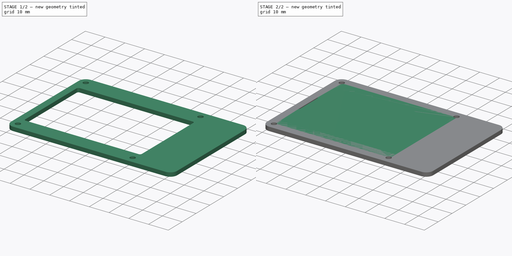
[diagram: build sequence overview — one tinted view per stage of 2, left to right]
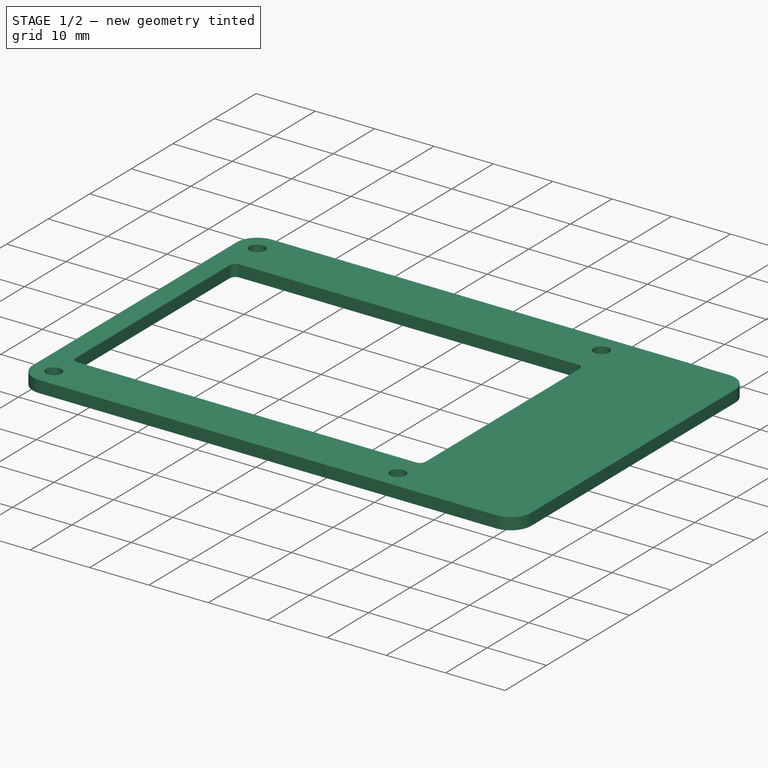
[diagram: stage 1 of 2 — iso view after this stage's code; geometry added in this stage tinted green]
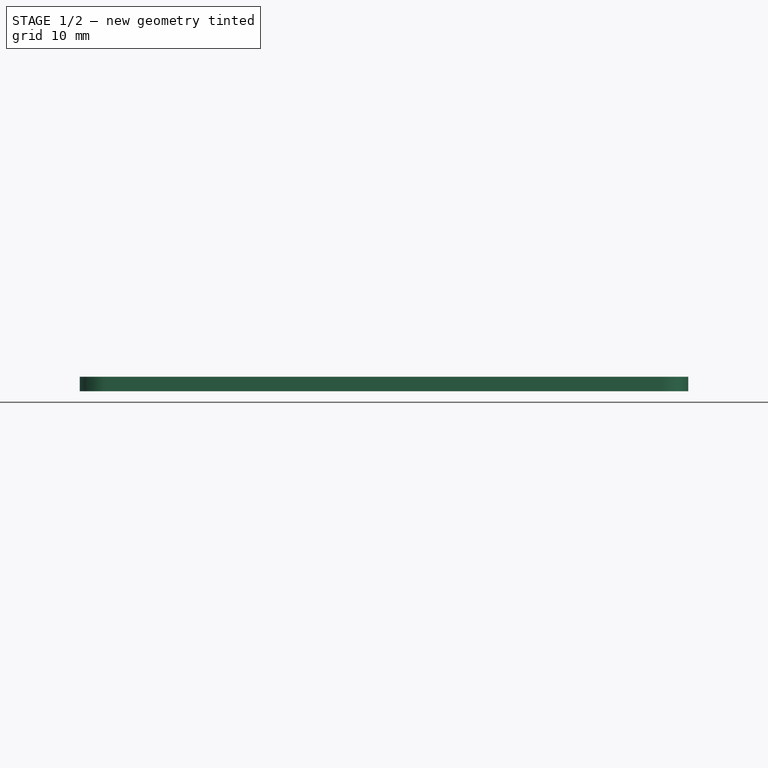
[diagram: stage 1 of 2 — front view after this stage's code; geometry added in this stage tinted green]
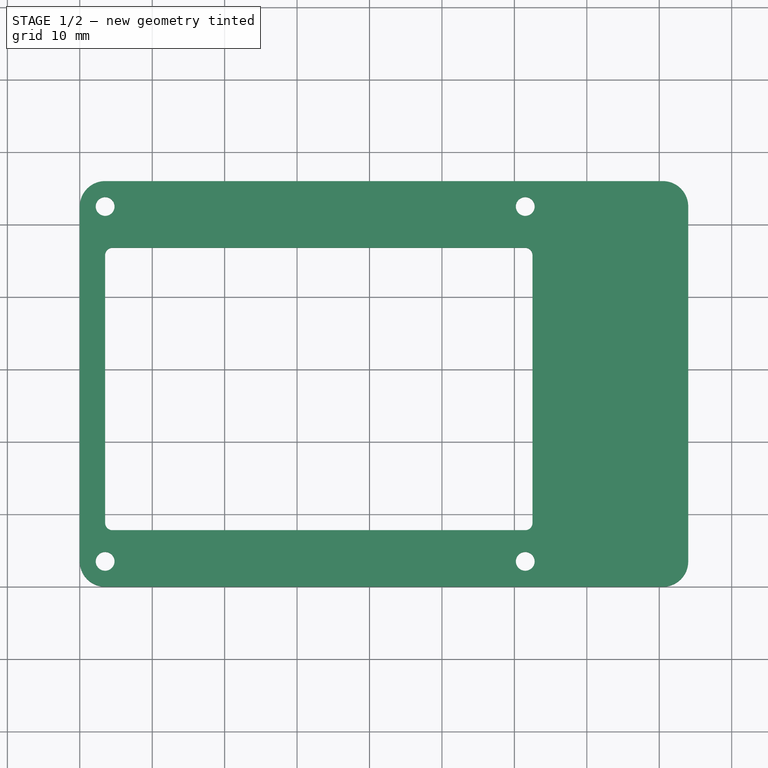
[diagram: stage 1 of 2 — top view after this stage's code; geometry added in this stage tinted green]
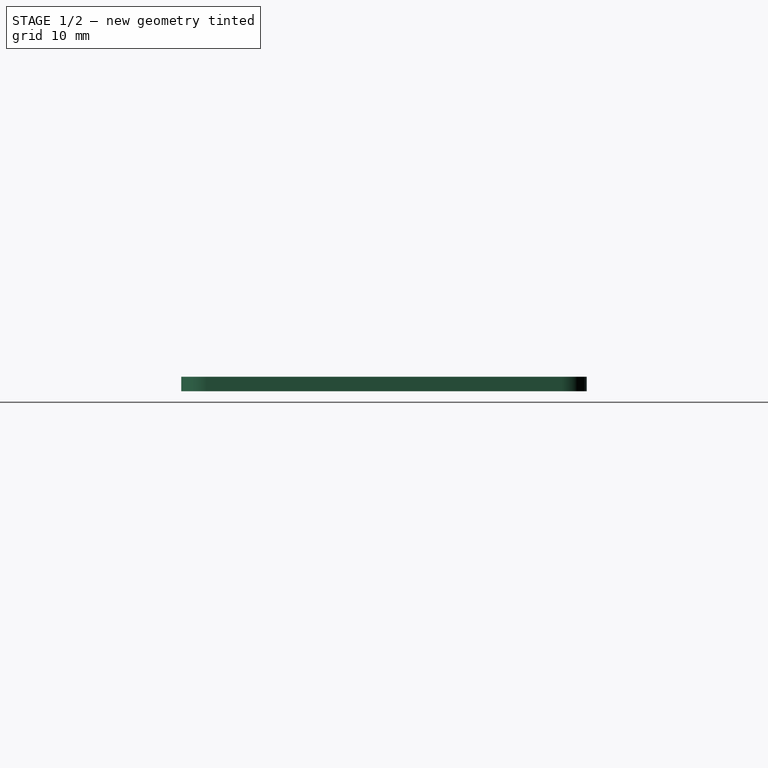
[diagram: stage 1 of 2 — right view after this stage's code; geometry added in this stage tinted green]
FCSTD DOCUMENT  (FreeCAD 0.17R13522 (Git))
Label: cover
License: All rights reserved
LicenseURL: http://en.wikipedia.org/wiki/All_rights_reserved
objects: Sketcher::SketchObject×2, PartDesign::Pad×2, PartDesign::Body×2, TechDraw::DrawViewDraft×2, TechDraw::DrawSVGTemplate×1, TechDraw::DrawPage×1
note: 8 computed .brp shape members not serialized (recipe doc carries the construction recipe); baked Part::Feature solids carry a one-line shape summary decoded from their .brp

FEATURE [PartDesign::Body] Body
  Group = -> [Sketch,Pad]
  Origin = -> Origin
  Placement = pos=(0,57,0) rot=(0,0,1;0rad)
  Tip = -> Pad
FEATURE [Sketcher::SketchObject] Sketch001
  MapMode = 5
  Support = -> [XY_Plane001]
  sketch-geometry (25):
    g0: LineSegment StartX=3.5 StartY=56 StartZ=0 EndX=80.5 EndY=56 EndZ=0
    g1: LineSegment StartX=84 StartY=52.5 StartZ=0 EndX=84 EndY=3.5 EndZ=0
    g2: LineSegment StartX=80.5 StartY=0 StartZ=0 EndX=3.5 EndY=0 EndZ=0
    g3: LineSegment StartX=0 StartY=3.5 StartZ=0 EndX=0 EndY=52.5 EndZ=0
    g4: ArcOfCircle CenterX=3.5 CenterY=52.5 CenterZ=0 NormalX=0 NormalY=0 NormalZ=1 AngleXU=0 Radius=3.5 StartAngle=1.5708 EndAngle=3.14159
    g5: ArcOfCircle CenterX=3.5 CenterY=3.5 CenterZ=0 NormalX=0 NormalY=0 NormalZ=1 AngleXU=0 Radius=3.5 StartAngle=3.14159 EndAngle=4.71239
    g6: ArcOfCircle CenterX=80.5 CenterY=3.5 CenterZ=0 NormalX=0 NormalY=0 NormalZ=1 AngleXU=0 Radius=3.5 StartAngle=4.71239 EndAngle=6.28319
    g7: ArcOfCircle CenterX=80.5 CenterY=52.5 CenterZ=0 NormalX=0 NormalY=0 NormalZ=1 AngleXU=0 Radius=3.5 StartAngle=0 EndAngle=1.5708
    g8: Circle CenterX=3.5 CenterY=52.5 CenterZ=0 NormalX=0 NormalY=0 NormalZ=1 AngleXU=0 Radius=1.3
    g9: Circle CenterX=3.5 CenterY=3.5 CenterZ=0 NormalX=0 NormalY=0 NormalZ=1 AngleXU=0 Radius=1.3
    g10: Circle CenterX=61.5 CenterY=3.5 CenterZ=0 NormalX=0 NormalY=0 NormalZ=1 AngleXU=0 Radius=1.3
    g11: Circle CenterX=61.5 CenterY=52.5 CenterZ=0 NormalX=0 NormalY=0 NormalZ=1 AngleXU=0 Radius=1.3
    g12: LineSegment [constr] StartX=3.5 StartY=56 StartZ=0 EndX=3.5 EndY=0 EndZ=0
    g13: LineSegment [constr] StartX=3.5 StartY=52.5 StartZ=0 EndX=61.5 EndY=52.5 EndZ=0
    g14: LineSegment [constr] StartX=3.5 StartY=3.5 StartZ=0 EndX=61.5 EndY=3.5 EndZ=0
    g15: LineSegment StartX=4.5 StartY=46.8 StartZ=0 EndX=61.5 EndY=46.8 EndZ=0
    g16: LineSegment StartX=62.5 StartY=45.8 StartZ=0 EndX=62.5 EndY=8.8 EndZ=0
    g17: LineSegment StartX=61.5 StartY=7.8 StartZ=0 EndX=4.5 EndY=7.8 EndZ=0
    g18: LineSegment StartX=3.5 StartY=8.8 StartZ=0 EndX=3.5 EndY=45.8 EndZ=0
    g19: ArcOfCircle CenterX=4.5 CenterY=45.8 CenterZ=0 NormalX=0 NormalY=0 NormalZ=1 AngleXU=0 Radius=1 StartAngle=1.5708 EndAngle=3.14159
    g20: ArcOfCircle CenterX=4.5 CenterY=8.8 CenterZ=0 NormalX=0 NormalY=0 NormalZ=1 AngleXU=0 Radius=1 StartAngle=3.14159 EndAngle=4.71239
    g21: ArcOfCircle CenterX=61.5 CenterY=8.8 CenterZ=0 NormalX=0 NormalY=0 NormalZ=1 AngleXU=0 Radius=1 StartAngle=4.71239 EndAngle=6.28319
    g22: ArcOfCircle CenterX=61.5 CenterY=45.8 CenterZ=0 NormalX=0 NormalY=0 NormalZ=1 AngleXU=0 Radius=1 StartAngle=0 EndAngle=1.5708
    g23: LineSegment [constr] StartX=3.5 StartY=8.8 StartZ=0 EndX=3.5 EndY=7.8 EndZ=0
    g24: LineSegment [constr] StartX=3.5 StartY=7.8 StartZ=0 EndX=4.5 EndY=7.8 EndZ=0
  constraints (65):
    c: Horizontal(g0)
    c: Horizontal(g2)
    c: Vertical(g1)
    c: Vertical(g3)
    c: Tangent(g0,g4) = 1.5708
    c: Tangent(g2,g5) = 1.5708
    c: Tangent(g3,g5) = 1.5708
    c: Tangent(g1,g6) = 1.5708
    c: Tangent(g2,g6) = 1.5708
    c: Tangent(g0,g7) = 1.5708
    c: Tangent(g1,g7) = 1.5708
    c: Equal(g5,g4)
    c: Equal(g4,g7)
    c: Equal(g4,g6)
    c: Radius(g4) = 3.5
    c: DistanceY(g2,g0) = 56
    c: DistanceX(g4,g1) = 84
    c: PointOnObject(g2,g-1)
    c: PointOnObject(g3,g-2)
    c: PointOnObject(g12,g0)
    c: PointOnObject(g12,g2)
    c: Vertical(g12)
    c: PointOnObject(g13,g12)
    c: Horizontal(g13)
    c: PointOnObject(g14,g12)
    c: Horizontal(g14)
    c: Coincident(g11,g13)
    c: Coincident(g10,g14)
    c: Coincident(g9,g14)
    c: Coincident(g13,g8)
    c: DistanceX(g9) = 3.5
    c: DistanceY(g9) = 3.5
    c: Radius(g9) = 1.3
    c: Equal(g9,g8)
    c: Equal(g9,g11)
    c: Equal(g9,g10)
    c: DistanceY(g5,g8) = 49
    c: DistanceX(g13,g13) = 58
    c: Equal(g13,g14)
    c: Coincident(g4,g3)
    c: Horizontal(g15)
    c: Horizontal(g17)
    c: Vertical(g16)
    c: Vertical(g18)
    c: Tangent(g15,g19) = 1.5708
    c: Tangent(g18,g19) = 1.5708
    c: Tangent(g17,g20) = 1.5708
    c: Tangent(g18,g20) = 1.5708
    c: Tangent(g16,g21) = 1.5708
    c: Tangent(g17,g21) = 1.5708
    c: Tangent(g15,g22) = 1.5708
    c: Tangent(g16,g22) = 1.5708
    c: Radius(g22) = 1
    c: Equal(g22,g21)
    c: Equal(g22,g20)
    c: Equal(g22,g19)
    c: DistanceY(g17,g15) = 39
    c: DistanceX(g18,g16) = 59
    c: Vertical(g23)
    c: Coincident(g23,g24)
    c: Horizontal(g24)
    c: Coincident(g17,g24)
    c: Coincident(g23,g18)
    c: DistanceX(g23) = 3.5
    c: DistanceY(g23) = 7.8
FEATURE [PartDesign::Pad] Pad001
  Length = 2
  Length2 = 100
  Profile = -> Sketch001
  Type = 0
FEATURE [PartDesign::Body] Body001
  Group = -> [Sketch001,Pad001]
  Origin = -> Origin001
  Tip = -> Pad001
FEATURE [TechDraw::DrawSVGTemplate] Template
  EditableTexts = Designed_by_Name=Designed by Name; Drawing_number=Drawing number; FC-Date=Date; FC-SC=Scale; FC-SH=Sheet; FC-Title=Title; Subtitle=Subtitle; Weight=Weight
  Height = 210
  Orientation = 1
  Width = 297
FEATURE [TechDraw::DrawViewDraft] DraftView
  Direction = (0,0,1)
  FontSize = 12
  LineSpacing = 1
  LineStyle = Solid
  LineWidth = 0.35
  LockPosition = false
  Rotation = 0
  ScaleType = 2
  Source = -> Pad
  Symbol = <blob: 5097 chars omitted>
  X = 80.677
  Y = 76.3636
FEATURE [TechDraw::DrawViewDraft] DraftView001
  Direction = (0,0,1)
  FontSize = 12
  LineSpacing = 1
  LineStyle = Solid
  LineWidth = 0.35
  LockPosition = false
  Rotation = 0
  ScaleType = 2
  Source = -> Pad001
  Symbol = <blob: 5087 chars omitted>
  X = 80.1047
  Y = 146.639
FEATURE [TechDraw::DrawPage] Page001
  KeepUpdated = true
  ProjectionType = 0
  Template = -> Template
  Views = -> [DraftView,DraftView001]
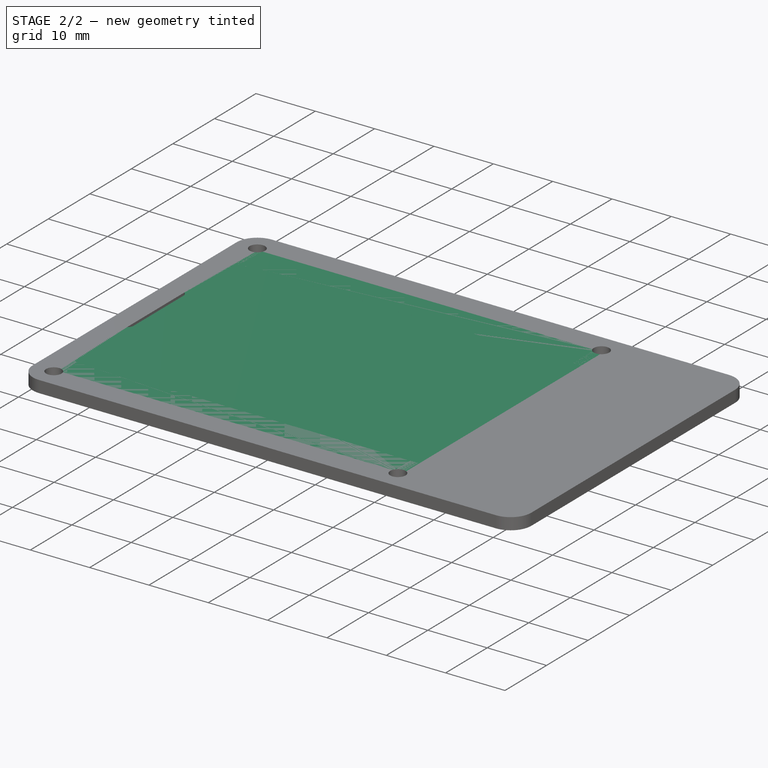
[diagram: stage 2 of 2 — iso view after this stage's code; geometry added in this stage tinted green]
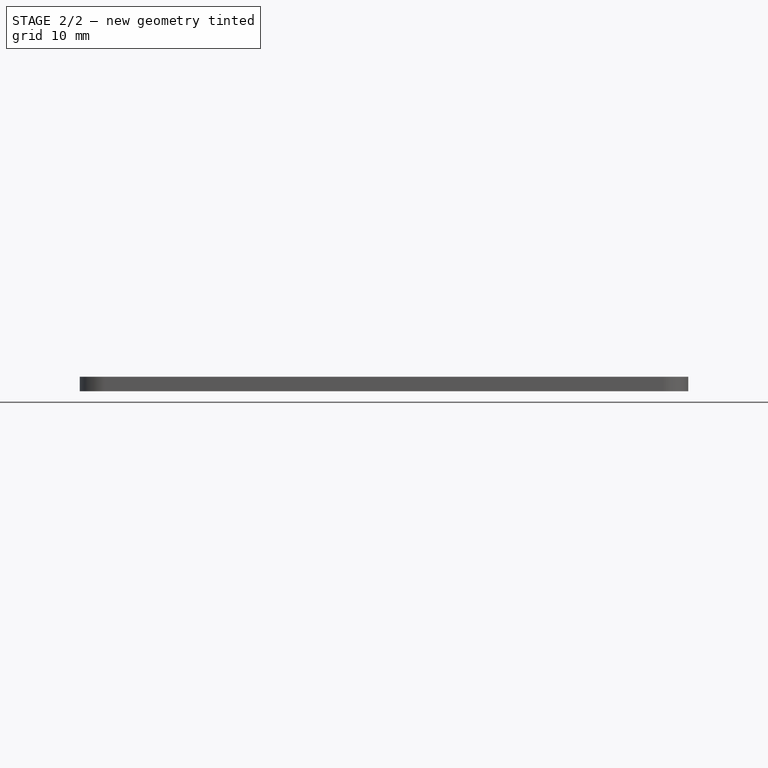
[diagram: stage 2 of 2 — front view after this stage's code; geometry added in this stage tinted green]
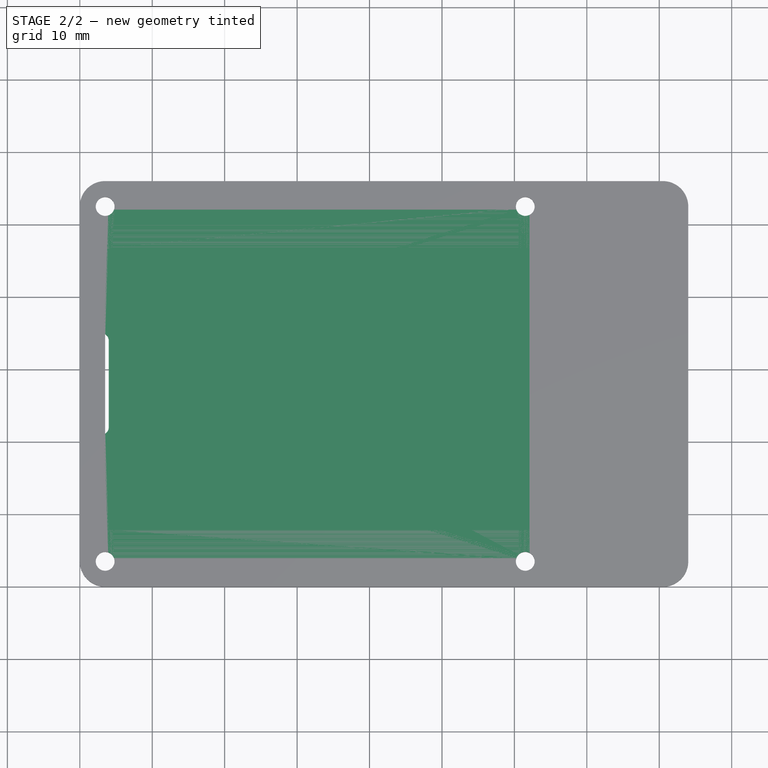
[diagram: stage 2 of 2 — top view after this stage's code; geometry added in this stage tinted green]
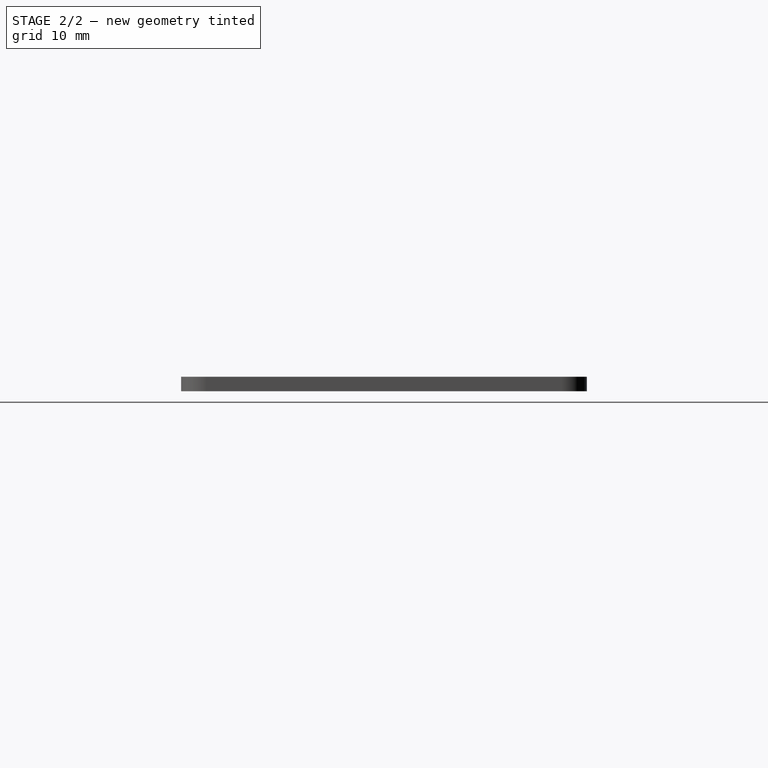
[diagram: stage 2 of 2 — right view after this stage's code; geometry added in this stage tinted green]
FEATURE [Sketcher::SketchObject] Sketch
  MapMode = 5
  Support = -> [XY_Plane]
  sketch-geometry (23):
    g0: LineSegment StartX=3.4953 StartY=56 StartZ=0 EndX=80.5 EndY=56 EndZ=0
    g1: LineSegment StartX=84 StartY=52.5 StartZ=0 EndX=84 EndY=3.5 EndZ=0
    g2: LineSegment StartX=80.5 StartY=0 StartZ=0 EndX=3.5 EndY=0 EndZ=0
    g3: LineSegment StartX=0 StartY=3.5 StartZ=0 EndX=0 EndY=20 EndZ=0
    g4: ArcOfCircle CenterX=3.4953 CenterY=52.5 CenterZ=0 NormalX=0 NormalY=0 NormalZ=1 AngleXU=0 Radius=3.5 StartAngle=1.5708 EndAngle=3.19342
    g5: ArcOfCircle CenterX=3.5 CenterY=3.5 CenterZ=0 NormalX=0 NormalY=0 NormalZ=1 AngleXU=0 Radius=3.5 StartAngle=3.14159 EndAngle=4.71239
    g6: ArcOfCircle CenterX=80.5 CenterY=3.5 CenterZ=0 NormalX=0 NormalY=0 NormalZ=1 AngleXU=0 Radius=3.5 StartAngle=4.71239 EndAngle=6.28319
    g7: ArcOfCircle CenterX=80.5 CenterY=52.5 CenterZ=0 NormalX=0 NormalY=0 NormalZ=1 AngleXU=0 Radius=3.5 StartAngle=0 EndAngle=1.5708
    g8: Circle CenterX=3.5 CenterY=52.5 CenterZ=0 NormalX=0 NormalY=0 NormalZ=1 AngleXU=0 Radius=1.3
    g9: Circle CenterX=3.5 CenterY=3.5 CenterZ=0 NormalX=0 NormalY=0 NormalZ=1 AngleXU=0 Radius=1.3
    g10: Circle CenterX=61.5 CenterY=3.5 CenterZ=0 NormalX=0 NormalY=0 NormalZ=1 AngleXU=0 Radius=1.3
    g11: Circle CenterX=61.5 CenterY=52.5 CenterZ=0 NormalX=0 NormalY=0 NormalZ=1 AngleXU=0 Radius=1.3
    g12: LineSegment [constr] StartX=3.5 StartY=56 StartZ=0 EndX=3.5 EndY=0 EndZ=0
    g13: LineSegment [constr] StartX=3.5 StartY=52.5 StartZ=0 EndX=61.5 EndY=52.5 EndZ=0
    g14: LineSegment [constr] StartX=3.5 StartY=3.5 StartZ=0 EndX=61.5 EndY=3.5 EndZ=0
    g15: LineSegment StartX=1 StartY=35 StartZ=0 EndX=3 EndY=35 EndZ=0
    g16: LineSegment StartX=4 StartY=34 StartZ=0 EndX=4 EndY=22 EndZ=0
    g17: LineSegment StartX=3 StartY=21 StartZ=0 EndX=1 EndY=21 EndZ=0
    g18: LineSegment StartX=0 StartY=36 StartZ=0 EndX=0 EndY=52.3187 EndZ=0
    g19: ArcOfCircle CenterX=1 CenterY=36 CenterZ=0 NormalX=0 NormalY=0 NormalZ=1 AngleXU=0 Radius=1 StartAngle=3.14159 EndAngle=4.71239
    g20: ArcOfCircle CenterX=3 CenterY=34 CenterZ=0 NormalX=0 NormalY=0 NormalZ=1 AngleXU=0 Radius=1 StartAngle=0 EndAngle=1.5708
    g21: ArcOfCircle CenterX=1 CenterY=20 CenterZ=0 NormalX=0 NormalY=0 NormalZ=1 AngleXU=0 Radius=1 StartAngle=1.5708 EndAngle=3.14159
    g22: ArcOfCircle CenterX=3 CenterY=22 CenterZ=0 NormalX=0 NormalY=0 NormalZ=1 AngleXU=0 Radius=1 StartAngle=4.71239 EndAngle=6.28319
  constraints (59):
    c: Horizontal(g0)
    c: Horizontal(g2)
    c: Vertical(g1)
    c: Vertical(g3)
    c: Tangent(g0,g4) = 1.5708
    c: Coincident(g18,g4) = 1.5708
    c: Tangent(g2,g5) = 1.5708
    c: Tangent(g3,g5) = 1.5708
    c: Tangent(g1,g6) = 1.5708
    c: Tangent(g2,g6) = 1.5708
    c: Tangent(g0,g7) = 1.5708
    c: Tangent(g1,g7) = 1.5708
    c: Equal(g5,g4)
    c: Equal(g4,g7)
    c: Equal(g4,g6)
    c: Radius(g4) = 3.5
    c: DistanceY(g2,g0) = 56
    c: DistanceX(g18,g1) = 84
    c: PointOnObject(g2,g-1)
    c: PointOnObject(g3,g-2)
    c: PointOnObject(g12,g0)
    c: PointOnObject(g12,g2)
    c: Vertical(g12)
    c: PointOnObject(g13,g12)
    c: Horizontal(g13)
    c: PointOnObject(g14,g12)
    c: Horizontal(g14)
    c: Coincident(g11,g13)
    c: Coincident(g10,g14)
    c: Coincident(g9,g14)
    c: Coincident(g13,g8)
    c: DistanceX(g9) = 3.5
    c: DistanceY(g9) = 3.5
    c: Radius(g9) = 1.3
    c: Equal(g9,g8)
    c: Equal(g9,g11)
    c: Equal(g9,g10)
    c: DistanceY(g5,g8) = 49
    c: DistanceX(g13,g13) = 58
    c: Equal(g13,g14)
    c: Horizontal(g15)
    c: Vertical(g16)
    c: Horizontal(g17)
    c: Tangent(g3,g18)
    c: Tangent(g15,g19) = -1.5708
    c: Tangent(g18,g19) = 1.5708
    c: Tangent(g15,g20) = 1.5708
    c: Tangent(g16,g20) = 1.5708
    c: Tangent(g3,g21) = 1.5708
    c: Tangent(g17,g21) = -1.5708
    c: Tangent(g16,g22) = 1.5708
    c: Tangent(g17,g22) = 1.5708
    c: Radius(g19) = 1
    c: Equal(g19,g20)
    c: Equal(g19,g22)
    c: Equal(g19,g21)
    c: DistanceY(g15,g0) = 21
    c: DistanceY(g2,g17) = 21
    c: DistanceX(g18,g16) = 4
FEATURE [PartDesign::Pad] Pad
  Length = 2
  Length2 = 100
  Profile = -> Sketch
  Type = 0
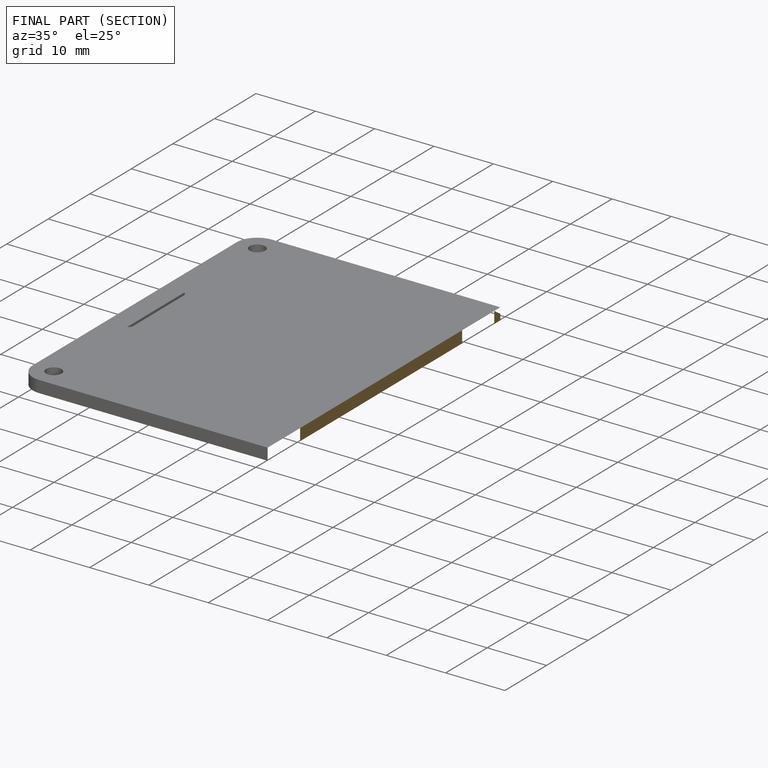
[diagram: finished part — half-section view (interior)]
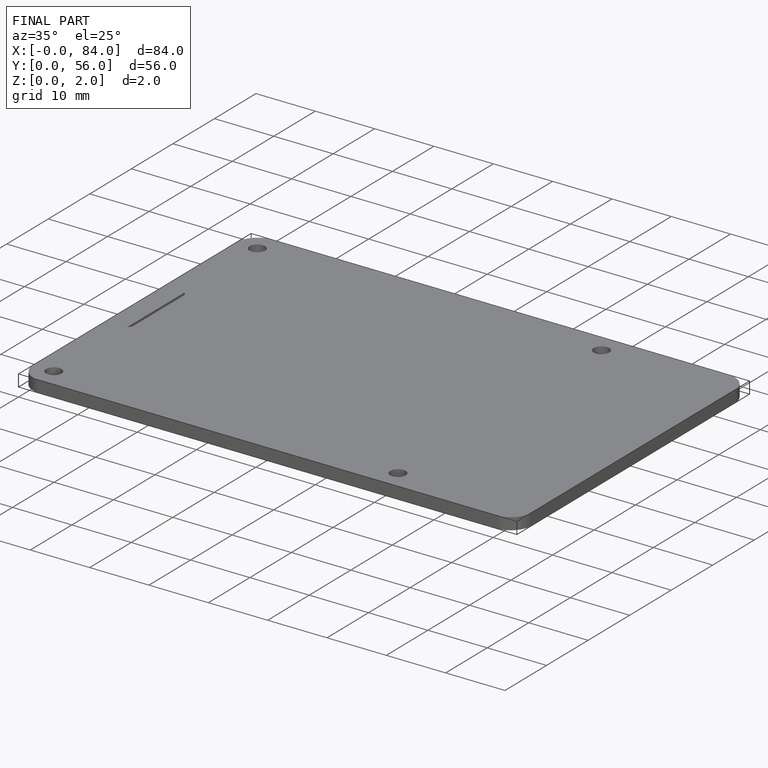
[diagram: finished part — iso view with bounding-box wireframe]
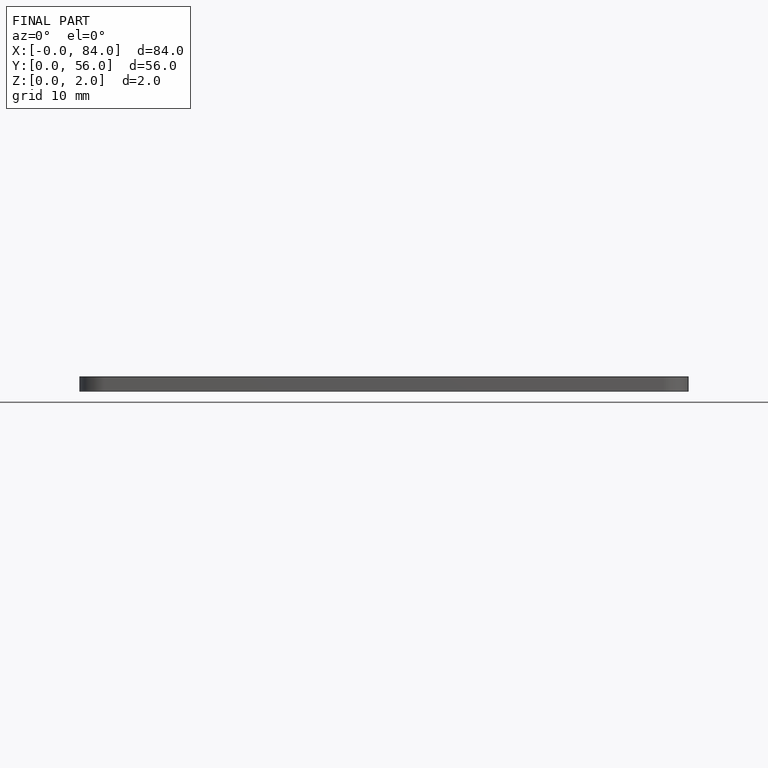
[diagram: finished part — front view with bounding-box wireframe]
